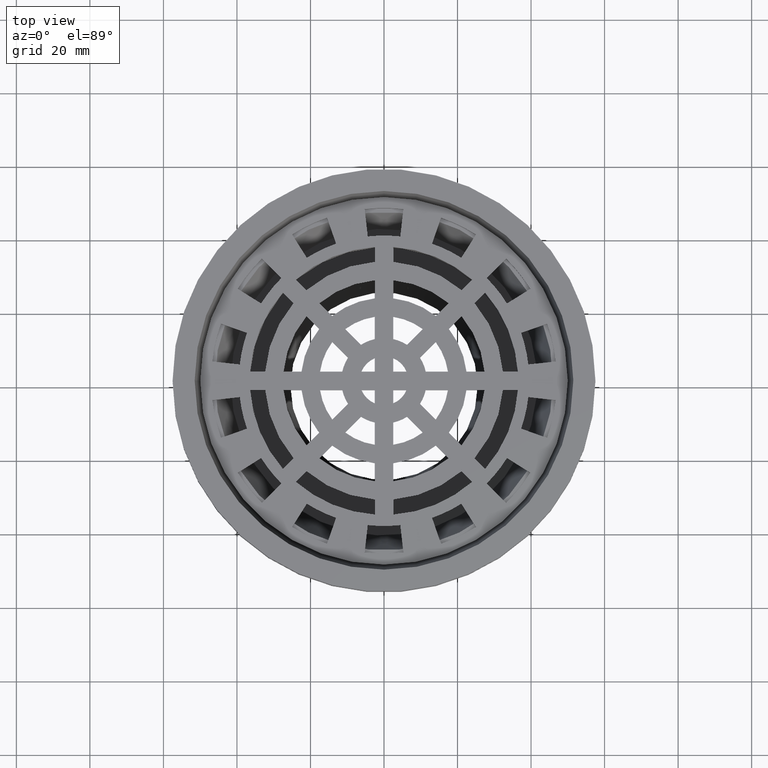
[diagram: clean part render]
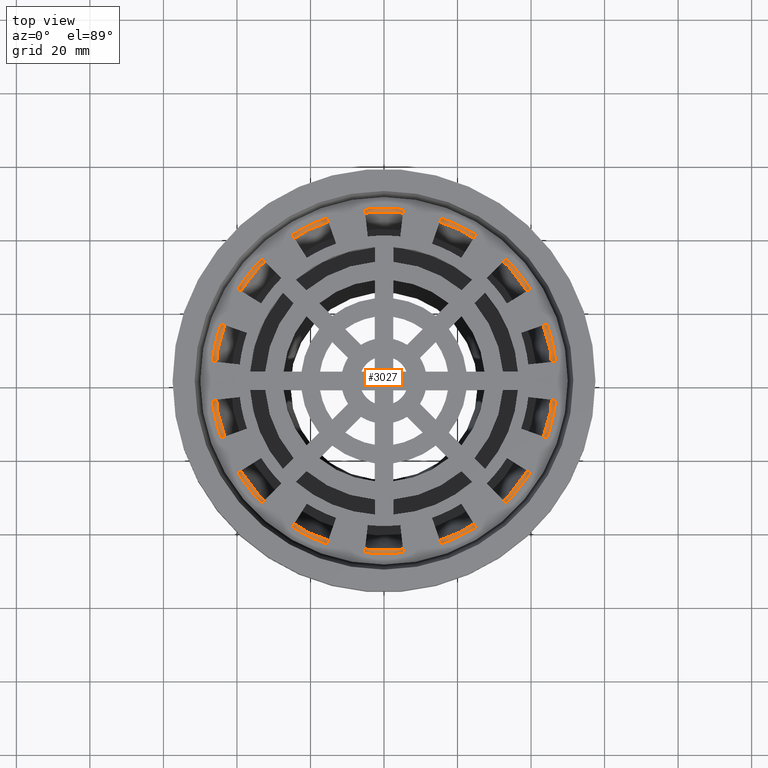
[diagram: same view with one face highlighted and labeled with its STEP entity id]
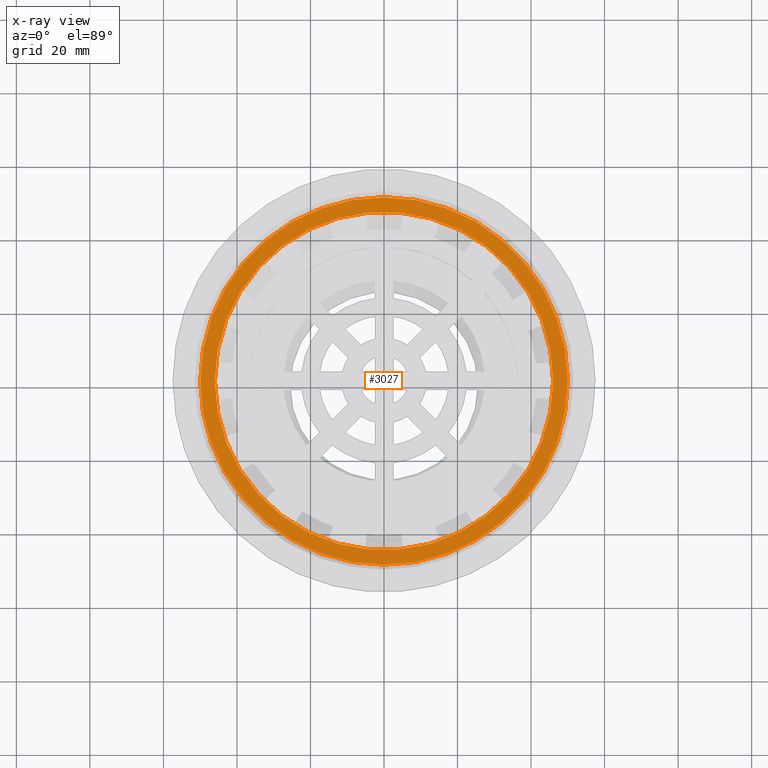
[diagram: x-ray of the same camera — body ghosted, the highlighted face saturated]
A machine part, top view. The second image highlights one B-rep face of the part: STEP entity #3027.
The next image is the same camera in x-ray: the body ghosted, the highlighted face saturated — about 0% of this face is hidden behind the body in this view.
In plain terms, the highlighted planar face has unit normal (0, 0, 1).
Its self-contained STEP definition (entity closure, byte-faithful):
#1443=ORIENTED_EDGE('',*,*,#1903,.T.);
#1444=ORIENTED_EDGE('',*,*,#1902,.F.);
#1902=EDGE_CURVE('',#2204,#2204,#2374,.T.);
#1903=EDGE_CURVE('',#2205,#2205,#2375,.T.);
#2204=VERTEX_POINT('',#5443);
#2205=VERTEX_POINT('',#5446);
#2374=CIRCLE('',#3360,50.);
#2375=CIRCLE('',#3362,46.);
#2585=EDGE_LOOP('',(#1443));
#2586=EDGE_LOOP('',(#1444));
#2815=FACE_BOUND('',#2585,.T.);
#2816=FACE_BOUND('',#2586,.T.);
#2897=PLANE('',#3361);
#3027=ADVANCED_FACE('',(#2815,#2816),#2897,.T.);
#3360=AXIS2_PLACEMENT_3D('',#5442,#4157,#4158);
#3361=AXIS2_PLACEMENT_3D('',#5444,#4159,#4160);
#3362=AXIS2_PLACEMENT_3D('',#5445,#4161,#4162);
#4157=DIRECTION('',(0.,0.,-1.));
#4158=DIRECTION('',(-1.,0.,0.));
#4159=DIRECTION('',(0.,0.,1.));
#4160=DIRECTION('',(1.,0.,0.));
#4161=DIRECTION('',(0.,0.,-1.));
#4162=DIRECTION('',(-1.,0.,0.));
#5442=CARTESIAN_POINT('',(0.,0.,-12.));
#5443=CARTESIAN_POINT('',(-50.,0.,-12.));
#5444=CARTESIAN_POINT('',(-50.,0.,-12.));
#5445=CARTESIAN_POINT('',(0.,0.,-12.));
#5446=CARTESIAN_POINT('',(-46.,0.,-12.));